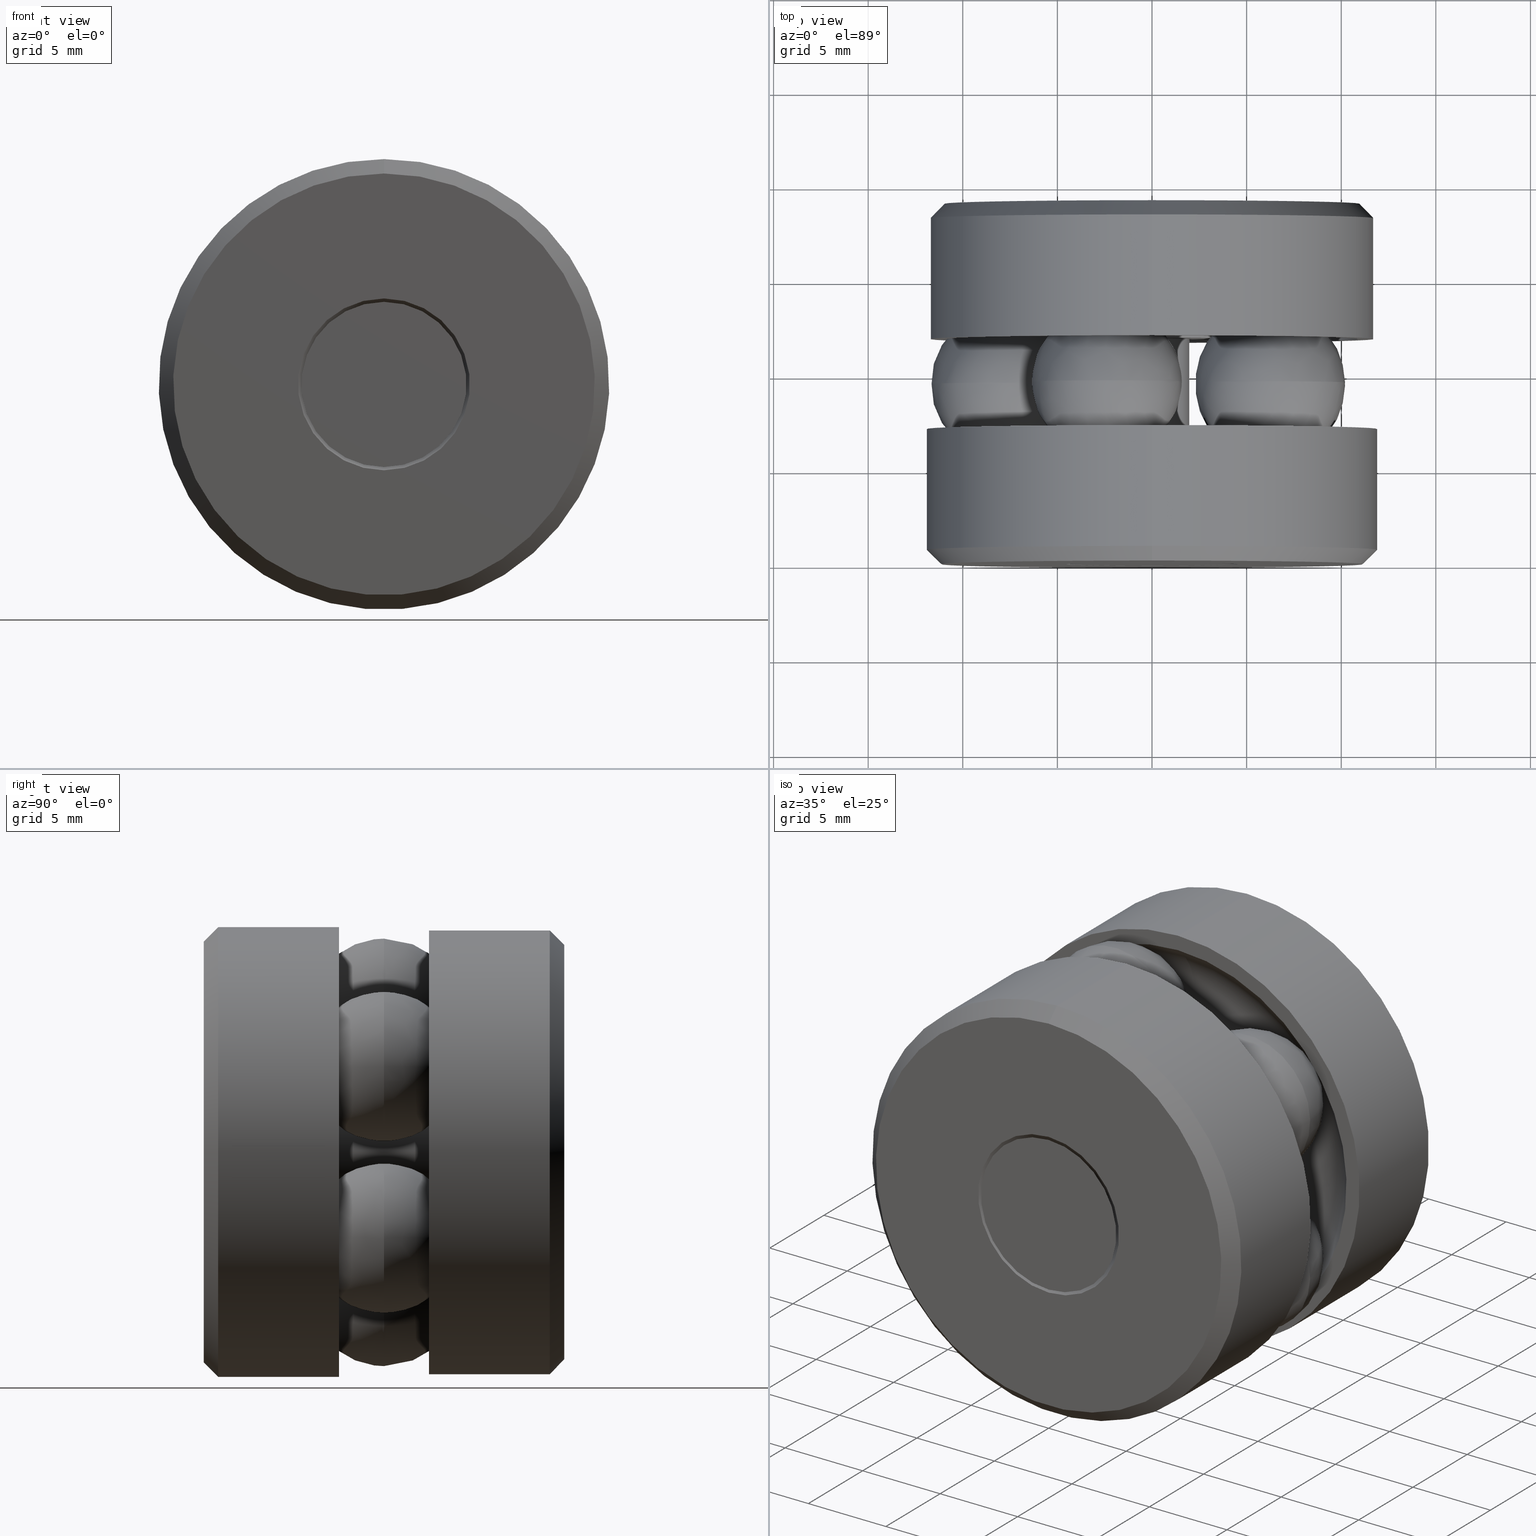
[diagram: canonical four-view strip — front | top / right | iso, engineering-drawing reading convention]
A machine part, canonical four-view strip (front | top / right | iso — engineering-drawing reading convention). The complete STEP part file that produces these views, byte-faithful:
ISO-10303-21;
HEADER;
FILE_DESCRIPTION (( 'STEP AP203' ),
    '1' );
FILE_NAME ('T-114RG_T-114RG-0015.step',
    '2016-02-04T15:34:10',
    ( '' ),
    ( '' ),
    'SwSTEP 2.0',
    'SolidWorks 2016',
    '' );
FILE_SCHEMA (( 'CONFIG_CONTROL_DESIGN' ));
ENDSEC;

DATA;
#1 = CARTESIAN_POINT ( 'NONE',  ( 0.0000000000000000000, 0.09375000000000001400, 0.0000000000000000000 ) ) ;
#2 = VERTEX_POINT ( 'NONE', #375 ) ;
#3 = FACE_BOUND ( 'NONE', #185, .T. ) ;
#4 = APPROVAL_ROLE ( '' ) ;
#5 = ORIENTED_EDGE ( 'NONE', *, *, #266, .T. ) ;
#6 = CARTESIAN_POINT ( 'NONE',  ( 0.0000000000000000000, 0.7500000000000001100, 0.0000000000000000000 ) ) ;
#7 = EDGE_CURVE ( 'NONE', #406, #406, #158, .T. ) ;
#8 = DIRECTION ( 'NONE',  ( 0.0000000000000000000, 0.0000000000000000000, 1.000000000000000000 ) ) ;
#9 = CARTESIAN_POINT ( 'NONE',  ( 0.0000000000000000000, 0.4685999999999999100, 0.4285499999999999900 ) ) ;
#10 = DIRECTION ( 'NONE',  ( -0.0000000000000000000, 1.000000000000000000, -0.0000000000000000000 ) ) ;
#11 = AXIS2_PLACEMENT_3D ( 'NONE', #392, #136, #362 ) ;
#12 = FACE_BOUND ( 'NONE', #261, .T. ) ;
#13 = DIRECTION ( 'NONE',  ( -0.9510565162951500900, 0.0000000000000000000, 0.3090169943749582800 ) ) ;
#14 = CARTESIAN_POINT ( 'NONE',  ( 0.0000000000000000000, 0.2813999999999999800, 0.4285499999999999300 ) ) ;
#15 = CARTESIAN_POINT ( 'NONE',  ( 0.0000000000000000000, 0.7500000000000001100, 0.0000000000000000000 ) ) ;
#16 = DIRECTION ( 'NONE',  ( 0.0000000000000000000, -1.000000000000000000, 0.0000000000000000000 ) ) ;
#17 = DIRECTION ( 'NONE',  ( 1.000000000000000000, 0.0000000000000000000, 0.0000000000000000000 ) ) ;
#18 = VERTEX_POINT ( 'NONE', #396 ) ;
#19 = CARTESIAN_POINT ( 'NONE',  ( 0.0000000000000000000, 0.3749999999999999400, 0.0000000000000000000 ) ) ;
#20 = FACE_BOUND ( 'NONE', #181, .T. ) ;
#21 = ORIENTED_EDGE ( 'NONE', *, *, #149, .F. ) ;
#22 = ADVANCED_FACE ( 'NONE', ( #393 ), #480, .T. ) ;
#23 = AXIS2_PLACEMENT_3D ( 'NONE', #45, #232, #511 ) ;
#24 = ADVANCED_FACE ( 'NONE', ( #40, #260 ), #365, .T. ) ;
#25 = TOROIDAL_SURFACE ( 'NONE', #37, 0.3037499999999999100, 0.1560000000000000000 ) ;
#26 = EDGE_CURVE ( 'NONE', #391, #391, #476, .T. ) ;
#27 = ORIENTED_EDGE ( 'NONE', *, *, #242, .T. ) ;
#28 = CC_DESIGN_APPROVAL ( #542, ( #519 ) ) ;
#29 = DESIGN_CONTEXT ( 'detailed design', #220, 'design' ) ;
#30 = VERTEX_POINT ( 'NONE', #207 ) ;
#31 = FACE_OUTER_BOUND ( 'NONE', #443, .T. ) ;
#32 = AXIS2_PLACEMENT_3D ( 'NONE', #471, #203, #465 ) ;
#33 = ORIENTED_EDGE ( 'NONE', *, *, #7, .T. ) ;
#34 = LOCAL_TIME ( 10, 34, 10.00000000000000000, #146 ) ;
#35 = DIRECTION ( 'NONE',  ( 0.0000000000000000000, 0.0000000000000000000, 1.000000000000000000 ) ) ;
#36 = FACE_OUTER_BOUND ( 'NONE', #477, .T. ) ;
#37 = AXIS2_PLACEMENT_3D ( 'NONE', #447, #249, #437 ) ;
#38 = CLOSED_SHELL ( 'NONE', ( #62, #324, #457, #412, #416, #527, #525, #106 ) ) ;
#39 = VERTEX_POINT ( 'NONE', #51 ) ;
#40 = FACE_BOUND ( 'NONE', #540, .T. ) ;
#41 = CLOSED_SHELL ( 'NONE', ( #493 ) ) ;
#42 = CALENDAR_DATE ( 2016, 4, 2 ) ;
#43 = DIRECTION ( 'NONE',  ( 0.0000000000000000000, 0.0000000000000000000, 1.000000000000000000 ) ) ;
#44 = CARTESIAN_POINT ( 'NONE',  ( 0.0000000000000000000, 0.0000000000000000000, 0.0000000000000000000 ) ) ;
#45 = CARTESIAN_POINT ( 'NONE',  ( 0.2457389120413912300, 0.3749999999999999400, 0.1785397703838372800 ) ) ;
#46 = CARTESIAN_POINT ( 'NONE',  ( 0.0000000000000000000, 0.7500000000000001100, 0.4317499999999999100 ) ) ;
#47 = FACE_OUTER_BOUND ( 'NONE', #173, .T. ) ;
#48 = EDGE_LOOP ( 'NONE', ( #495 ) ) ;
#49 = CARTESIAN_POINT ( 'NONE',  ( 0.0000000000000000000, 0.4685999999999999600, 0.08300000000000003200 ) ) ;
#50 = DIRECTION ( 'NONE',  ( -0.0000000000000000000, 1.000000000000000000, -0.0000000000000000000 ) ) ;
#51 = CARTESIAN_POINT ( 'NONE',  ( 0.0000000000000000000, 0.09582106781186527900, 0.08300000000000000400 ) ) ;
#52 = CARTESIAN_POINT ( 'NONE',  ( 0.0000000000000000000, 0.0000000000000000000, 0.0000000000000000000 ) ) ;
#53 = CC_DESIGN_PERSON_AND_ORGANIZATION_ASSIGNMENT ( #322, #330, ( #519 ) ) ;
#54 = ORIENTED_EDGE ( 'NONE', *, *, #275, .T. ) ;
#55 = CARTESIAN_POINT ( 'NONE',  ( 0.0000000000000000000, 0.0000000000000000000, 0.1717499999999989300 ) ) ;
#56 = CARTESIAN_POINT ( 'NONE',  ( 0.0000000000000000000, 0.0000000000000000000, 0.0000000000000000000 ) ) ;
#57 = CLOSED_SHELL ( 'NONE', ( #366 ) ) ;
#58 = DIRECTION ( 'NONE',  ( 0.0000000000000000000, 0.0000000000000000000, 1.000000000000000000 ) ) ;
#59 = AXIS2_PLACEMENT_3D ( 'NONE', #442, #482, #503 ) ;
#60 = PERSON_AND_ORGANIZATION ( #420, #75 ) ;
#61 = DIRECTION ( 'NONE',  ( -0.0000000000000000000, 1.000000000000000000, -0.0000000000000000000 ) ) ;
#62 = ADVANCED_FACE ( 'NONE', ( #31, #141 ), #466, .F. ) ;
#63 = DATE_TIME_ROLE ( 'creation_date' ) ;
#64 = FACE_OUTER_BOUND ( 'NONE', #461, .T. ) ;
#65 = ADVANCED_FACE ( 'NONE', ( #486, #274 ), #115, .T. ) ;
#66 = EDGE_CURVE ( 'NONE', #273, #273, #234, .T. ) ;
#67 = CLOSED_SHELL ( 'NONE', ( #192 ) ) ;
#68 = AXIS2_PLACEMENT_3D ( 'NONE', #297, #272, #303 ) ;
#69 = CIRCLE ( 'NONE', #331, 0.4387499999999999700 ) ;
#70 = ORIENTED_EDGE ( 'NONE', *, *, #275, .F. ) ;
#71 = EDGE_CURVE ( 'NONE', #156, #156, #353, .T. ) ;
#72 = CARTESIAN_POINT ( 'NONE',  ( -0.1789499999999998300, 0.2814000000000000400, 0.0000000000000000000 ) ) ;
#73 = COORDINATED_UNIVERSAL_TIME_OFFSET ( 5, 0, .BEHIND. ) ;
#74 = ORIENTED_EDGE ( 'NONE', *, *, #133, .F. ) ;
#75 = ORGANIZATION ( 'UNSPECIFIED', 'UNSPECIFIED', '' ) ;
#76 = SPHERICAL_SURFACE ( 'NONE', #536, 0.1560000000000000000 ) ;
#77 = AXIS2_PLACEMENT_3D ( 'NONE', #174, #166, #163 ) ;
#78 = ORIENTED_EDGE ( 'NONE', *, *, #287, .F. ) ;
#79 = PLANE ( 'NONE',  #108 ) ;
#80 = SHAPE_DEFINITION_REPRESENTATION ( #350, #154 ) ;
#81 = DIRECTION ( 'NONE',  ( -0.0000000000000000000, 1.000000000000000000, 0.0000000000000000000 ) ) ;
#82 = ORIENTED_EDGE ( 'NONE', *, *, #66, .T. ) ;
#83 = CC_DESIGN_DATE_AND_TIME_ASSIGNMENT ( #423, #63, ( #519 ) ) ;
#84 = LOCAL_TIME ( 10, 34, 10.00000000000000000, #202 ) ;
#85 = DIRECTION ( 'NONE',  ( 0.0000000000000000000, 0.0000000000000000000, 1.000000000000000000 ) ) ;
#86 = AXIS2_PLACEMENT_3D ( 'NONE', #1, #16, #411 ) ;
#87 = DIRECTION ( 'NONE',  ( -0.0000000000000000000, 1.000000000000000000, -0.0000000000000000000 ) ) ;
#88 = CIRCLE ( 'NONE', #413, 0.07800000000000009700 ) ;
#89 = CARTESIAN_POINT ( 'NONE',  ( 0.0000000000000000000, 0.6541789321881348300, 0.08300000000000011500 ) ) ;
#90 = ORIENTED_EDGE ( 'NONE', *, *, #191, .T. ) ;
#91 = DIRECTION ( 'NONE',  ( -0.0000000000000000000, 1.000000000000000000, -0.0000000000000000000 ) ) ;
#92 = DIRECTION ( 'NONE',  ( 0.0000000000000000000, 0.0000000000000000000, 1.000000000000000000 ) ) ;
#93 = APPLICATION_PROTOCOL_DEFINITION ( 'international standard', 'config_control_design', 1994, #432 ) ;
#94 = AXIS2_PLACEMENT_3D ( 'NONE', #251, #363, #342 ) ;
#95 = CARTESIAN_POINT ( 'NONE',  ( 0.0000000000000000000, 0.4685999999999999100, 0.0000000000000000000 ) ) ;
#96 = FACE_OUTER_BOUND ( 'NONE', #472, .T. ) ;
#97 = ORIENTED_EDGE ( 'NONE', *, *, #7, .F. ) ;
#98 = MANIFOLD_SOLID_BREP ( 'BALLS[4]', #195 ) ;
#99 = PLANE ( 'NONE',  #262 ) ;
#100 = CALENDAR_DATE ( 2016, 4, 2 ) ;
#101 = DIRECTION ( 'NONE',  ( 0.0000000000000000000, -0.0000000000000000000, -1.000000000000000000 ) ) ;
#102 = ADVANCED_FACE ( 'NONE', ( ), #123, .T. ) ;
#103 = FACE_OUTER_BOUND ( 'NONE', #278, .T. ) ;
#104 = DIRECTION ( 'NONE',  ( 0.0000000000000000000, -1.000000000000000000, 0.0000000000000000000 ) ) ;
#105 = ORIENTED_EDGE ( 'NONE', *, *, #242, .F. ) ;
#106 = ADVANCED_FACE ( 'NONE', ( #244, #3 ), #99, .T. ) ;
#107 = CARTESIAN_POINT ( 'NONE',  ( 0.0000000000000000000, 0.4685999999999999600, 0.4617499999999999900 ) ) ;
#108 = AXIS2_PLACEMENT_3D ( 'NONE', #72, #81, #35 ) ;
#109 = FACE_BOUND ( 'NONE', #468, .T. ) ;
#110 = ORIENTED_EDGE ( 'NONE', *, *, #287, .T. ) ;
#111 = PRODUCT_DEFINITION_FORMATION_WITH_SPECIFIED_SOURCE ( 'ANY', '', #270, .NOT_KNOWN. ) ;
#112 = DIRECTION ( 'NONE',  ( 0.0000000000000000000, 0.0000000000000000000, 1.000000000000000000 ) ) ;
#113 = AXIS2_PLACEMENT_3D ( 'NONE', #424, #439, #334 ) ;
#114 = VERTEX_POINT ( 'NONE', #291 ) ;
#115 = CONICAL_SURFACE ( 'NONE', #86, 0.07800000000000000000, 0.7853981633974426200 ) ;
#116 = DIRECTION ( 'NONE',  ( -0.0000000000000000000, 1.000000000000000000, -0.0000000000000000000 ) ) ;
#117 = EDGE_LOOP ( 'NONE', ( #21 ) ) ;
#118 = CARTESIAN_POINT ( 'NONE',  ( 0.0000000000000000000, 0.4685999999999999600, 0.0000000000000000000 ) ) ;
#119 = DIRECTION ( 'NONE',  ( 0.0000000000000000000, 0.0000000000000000000, 1.000000000000000000 ) ) ;
#120 = FACE_OUTER_BOUND ( 'NONE', #390, .T. ) ;
#121 = DIRECTION ( 'NONE',  ( -0.3090169943749447300, 0.0000000000000000000, 0.9510565162951545300 ) ) ;
#122 = VERTEX_POINT ( 'NONE', #178 ) ;
#123 = SPHERICAL_SURFACE ( 'NONE', #204, 0.1560000000000000000 ) ;
#124 = EDGE_LOOP ( 'NONE', ( #134 ) ) ;
#125 = DIRECTION ( 'NONE',  ( -0.0000000000000000000, 1.000000000000000000, -0.0000000000000000000 ) ) ;
#126 =( CONVERSION_BASED_UNIT ( 'INCH', #534 ) LENGTH_UNIT ( ) NAMED_UNIT ( #459 ) );
#127 = AXIS2_PLACEMENT_3D ( 'NONE', #19, #358, #92 ) ;
#128 = DIRECTION ( 'NONE',  ( -0.0000000000000000000, 1.000000000000000000, -0.0000000000000000000 ) ) ;
#129 = CARTESIAN_POINT ( 'NONE',  ( 0.0000000000000000000, 0.2813999999999999300, 0.0000000000000000000 ) ) ;
#130 = SPHERICAL_SURFACE ( 'NONE', #506, 0.1560000000000000000 ) ;
#131 = PERSON_AND_ORGANIZATION_ROLE ( 'classification_officer' ) ;
#132 = CARTESIAN_POINT ( 'NONE',  ( -0.3037499999999999100, 0.3749999999999999400, 0.0000000000000000000 ) ) ;
#133 = EDGE_CURVE ( 'NONE', #39, #39, #454, .T. ) ;
#134 = ORIENTED_EDGE ( 'NONE', *, *, #26, .F. ) ;
#135 = DIRECTION ( 'NONE',  ( 0.0000000000000000000, 0.0000000000000000000, 1.000000000000000000 ) ) ;
#136 = DIRECTION ( 'NONE',  ( -0.0000000000000000000, 1.000000000000000000, 0.0000000000000000000 ) ) ;
#137 = APPROVAL ( #215, 'UNSPECIFIED' ) ;
#138 = CARTESIAN_POINT ( 'NONE',  ( 0.0000000000000000000, 0.7199999999999997500, 0.0000000000000000000 ) ) ;
#139 = VERTEX_POINT ( 'NONE', #14 ) ;
#140 = DIRECTION ( 'NONE',  ( 0.0000000000000000000, 0.0000000000000000000, 1.000000000000000000 ) ) ;
#141 = FACE_BOUND ( 'NONE', #160, .T. ) ;
#142 = ADVANCED_FACE ( 'NONE', ( #381, #337 ), #206, .F. ) ;
#143 = DIRECTION ( 'NONE',  ( -0.0000000000000000000, 1.000000000000000000, -0.0000000000000000000 ) ) ;
#144 = AXIS2_PLACEMENT_3D ( 'NONE', #451, #382, #335 ) ;
#145 = EDGE_LOOP ( 'NONE', ( #33 ) ) ;
#146 = COORDINATED_UNIVERSAL_TIME_OFFSET ( 5, 0, .BEHIND. ) ;
#147 = CARTESIAN_POINT ( 'NONE',  ( 0.0000000000000000000, -4.886714801477222700E-017, 0.0000000000000000000 ) ) ;
#148 = ADVANCED_FACE ( 'NONE', ( #20, #103 ), #336, .T. ) ;
#149 = EDGE_CURVE ( 'NONE', #485, #485, #440, .T. ) ;
#150 = CYLINDRICAL_SURFACE ( 'NONE', #314, 0.07800000000000004200 ) ;
#151 = EDGE_LOOP ( 'NONE', ( #214 ) ) ;
#152 = AXIS2_PLACEMENT_3D ( 'NONE', #300, #323, #311 ) ;
#153 = DIRECTION ( 'NONE',  ( 0.0000000000000000000, 0.0000000000000000000, 1.000000000000000000 ) ) ;
#154 = ADVANCED_BREP_SHAPE_REPRESENTATION ( 'T-114RG_T-114RG-0015', ( #361, #403, #496, #199, #541, #463, #306, #98, #474 ), #305 ) ;
#155 = EDGE_CURVE ( 'NONE', #379, #379, #88, .T. ) ;
#156 = VERTEX_POINT ( 'NONE', #55 ) ;
#157 = EDGE_CURVE ( 'NONE', #258, #258, #526, .T. ) ;
#158 = CIRCLE ( 'NONE', #252, 0.4285499999999999900 ) ;
#159 = DIRECTION ( 'NONE',  ( 0.0000000000000000000, 0.0000000000000000000, 1.000000000000000000 ) ) ;
#160 = EDGE_LOOP ( 'NONE', ( #407 ) ) ;
#161 = LOCAL_TIME ( 10, 34, 10.00000000000000000, #279 ) ;
#162 = PERSON_AND_ORGANIZATION_ROLE ( 'design_supplier' ) ;
#163 = DIRECTION ( 'NONE',  ( 0.0000000000000000000, 0.0000000000000000000, 1.000000000000000000 ) ) ;
#164 = AXIS2_PLACEMENT_3D ( 'NONE', #186, #125, #119 ) ;
#165 = FACE_OUTER_BOUND ( 'NONE', #48, .T. ) ;
#166 = DIRECTION ( 'NONE',  ( -0.0000000000000000000, 1.000000000000000000, -0.0000000000000000000 ) ) ;
#167 = ORIENTED_EDGE ( 'NONE', *, *, #188, .F. ) ;
#168 = DIRECTION ( 'NONE',  ( 0.9510565162951545300, -0.0000000000000000000, 0.3090169943749447300 ) ) ;
#169 = DIRECTION ( 'NONE',  ( 0.0000000000000000000, 0.0000000000000000000, 1.000000000000000000 ) ) ;
#170 = CYLINDRICAL_SURFACE ( 'NONE', #359, 0.4617499999999999900 ) ;
#171 = CC_DESIGN_APPROVAL ( #137, ( #111 ) ) ;
#172 = CARTESIAN_POINT ( 'NONE',  ( 0.0000000000000000000, 0.4685999999999999100, 0.1789499999999999100 ) ) ;
#173 = EDGE_LOOP ( 'NONE', ( #267 ) ) ;
#174 = CARTESIAN_POINT ( 'NONE',  ( 0.0000000000000000000, 0.7500000000000001100, 0.0000000000000000000 ) ) ;
#175 = EDGE_LOOP ( 'NONE', ( #428 ) ) ;
#176 = APPROVAL_DATE_TIME ( #295, #137 ) ;
#177 = CARTESIAN_POINT ( 'NONE',  ( 0.0000000000000000000, 0.6541789321881348300, 0.0000000000000000000 ) ) ;
#178 = CARTESIAN_POINT ( 'NONE',  ( 0.0000000000000000000, 0.2813999999999999300, 0.4687500000000000000 ) ) ;
#179 = COORDINATED_UNIVERSAL_TIME_OFFSET ( 5, 0, .BEHIND. ) ;
#180 = TOROIDAL_SURFACE ( 'NONE', #127, 0.3037499999999999100, 0.1560000000000000000 ) ;
#181 = EDGE_LOOP ( 'NONE', ( #369 ) ) ;
#182 = AXIS2_PLACEMENT_3D ( 'NONE', #368, #246, #307 ) ;
#183 = CARTESIAN_POINT ( 'NONE',  ( 0.0000000000000000000, 0.0000000000000000000, 0.0000000000000000000 ) ) ;
#184 = FACE_OUTER_BOUND ( 'NONE', #313, .T. ) ;
#185 = EDGE_LOOP ( 'NONE', ( #105 ) ) ;
#186 = CARTESIAN_POINT ( 'NONE',  ( 0.0000000000000000000, 0.03000000000000029400, 0.0000000000000000000 ) ) ;
#187 = DIRECTION ( 'NONE',  ( 0.0000000000000000000, 0.0000000000000000000, 1.000000000000000000 ) ) ;
#188 = EDGE_CURVE ( 'NONE', #139, #139, #325, .T. ) ;
#189 = APPROVAL_PERSON_ORGANIZATION ( #310, #137, #288 ) ;
#190 = DIRECTION ( 'NONE',  ( 0.0000000000000000000, 0.0000000000000000000, 1.000000000000000000 ) ) ;
#191 = EDGE_CURVE ( 'NONE', #30, #30, #312, .T. ) ;
#192 = ADVANCED_FACE ( 'NONE', ( ), #76, .T. ) ;
#193 = CIRCLE ( 'NONE', #512, 0.4317499999999999100 ) ;
#194 = AXIS2_PLACEMENT_3D ( 'NONE', #129, #128, #159 ) ;
#195 = CLOSED_SHELL ( 'NONE', ( #102 ) ) ;
#196 = ADVANCED_FACE ( 'NONE', ( ), #426, .T. ) ;
#197 = EDGE_CURVE ( 'NONE', #475, #475, #193, .T. ) ;
#198 = SPHERICAL_SURFACE ( 'NONE', #240, 0.1560000000000000000 ) ;
#199 = MANIFOLD_SOLID_BREP ( 'Revolve3', #57 ) ;
#200 = CLOSED_SHELL ( 'NONE', ( #455, #24, #148, #142, #281, #236, #238, #372 ) ) ;
#201 = CC_DESIGN_PERSON_AND_ORGANIZATION_ASSIGNMENT ( #60, #217, ( #111 ) ) ;
#202 = COORDINATED_UNIVERSAL_TIME_OFFSET ( 5, 0, .BEHIND. ) ;
#203 = DIRECTION ( 'NONE',  ( -0.0000000000000000000, 1.000000000000000000, -0.0000000000000000000 ) ) ;
#204 = AXIS2_PLACEMENT_3D ( 'NONE', #269, #13, #522 ) ;
#205 = DIRECTION ( 'NONE',  ( -0.0000000000000000000, 1.000000000000000000, -0.0000000000000000000 ) ) ;
#206 = CONICAL_SURFACE ( 'NONE', #296, 0.1788210678118642400, 0.7853981633974428400 ) ;
#207 = CARTESIAN_POINT ( 'NONE',  ( 0.0000000000000000000, 0.7199999999999997500, 0.4617499999999999900 ) ) ;
#208 = DIRECTION ( 'NONE',  ( -0.0000000000000000000, 1.000000000000000000, -0.0000000000000000000 ) ) ;
#209 = EDGE_LOOP ( 'NONE', ( #97 ) ) ;
#210 = CARTESIAN_POINT ( 'NONE',  ( 0.0000000000000000000, -1.956373509651593500E-018, 0.0000000000000000000 ) ) ;
#211 = AXIS2_PLACEMENT_3D ( 'NONE', #318, #530, #481 ) ;
#212 = FACE_OUTER_BOUND ( 'NONE', #117, .T. ) ;
#213 = DIRECTION ( 'NONE',  ( 0.0000000000000000000, 0.0000000000000000000, 1.000000000000000000 ) ) ;
#214 = ORIENTED_EDGE ( 'NONE', *, *, #328, .T. ) ;
#215 = APPROVAL_STATUS ( 'not_yet_approved' ) ;
#216 = LOCAL_TIME ( 10, 34, 10.00000000000000000, #179 ) ;
#217 = PERSON_AND_ORGANIZATION_ROLE ( 'creator' ) ;
#218 = APPLICATION_PROTOCOL_DEFINITION ( 'international standard', 'config_control_design', 1994, #220 ) ;
#219 = DIRECTION ( 'NONE',  ( -0.0000000000000000000, 1.000000000000000000, -0.0000000000000000000 ) ) ;
#220 = APPLICATION_CONTEXT ( 'configuration controlled 3d designs of mechanical parts and assemblies' ) ;
#221 = FACE_OUTER_BOUND ( 'NONE', #421, .T. ) ;
#222 = DIRECTION ( 'NONE',  ( -0.0000000000000000000, 1.000000000000000000, -0.0000000000000000000 ) ) ;
#223 = EDGE_LOOP ( 'NONE', ( #339 ) ) ;
#224 = CARTESIAN_POINT ( 'NONE',  ( 0.0000000000000000000, 0.6562500000000001100, 0.07800000000000009700 ) ) ;
#225 = AXIS2_PLACEMENT_3D ( 'NONE', #226, #222, #190 ) ;
#226 = CARTESIAN_POINT ( 'NONE',  ( 0.0000000000000000000, 0.2814000000000000400, 0.0000000000000000000 ) ) ;
#227 = FACE_BOUND ( 'NONE', #484, .T. ) ;
#228 = DIRECTION ( 'NONE',  ( 0.0000000000000000000, 0.0000000000000000000, 1.000000000000000000 ) ) ;
#229 = EDGE_LOOP ( 'NONE', ( #508 ) ) ;
#230 = DIRECTION ( 'NONE',  ( -0.0000000000000000000, 1.000000000000000000, 0.0000000000000000000 ) ) ;
#231 = CC_DESIGN_PERSON_AND_ORGANIZATION_ASSIGNMENT ( #502, #162, ( #111 ) ) ;
#232 = DIRECTION ( 'NONE',  ( 0.5877852522924684700, 0.0000000000000000000, -0.8090169943749507800 ) ) ;
#233 = VERTEX_POINT ( 'NONE', #378 ) ;
#234 = CIRCLE ( 'NONE', #113, 0.08300000000000003200 ) ;
#235 = AXIS2_PLACEMENT_3D ( 'NONE', #488, #316, #398 ) ;
#236 = ADVANCED_FACE ( 'NONE', ( #221, #515 ), #79, .T. ) ;
#237 = EDGE_LOOP ( 'NONE', ( #355 ) ) ;
#238 = ADVANCED_FACE ( 'NONE', ( #415, #64 ), #180, .F. ) ;
#239 = FACE_OUTER_BOUND ( 'NONE', #489, .T. ) ;
#240 = AXIS2_PLACEMENT_3D ( 'NONE', #271, #388, #387 ) ;
#241 = PLANE ( 'NONE',  #458 ) ;
#242 = EDGE_CURVE ( 'NONE', #364, #364, #535, .T. ) ;
#243 = VERTEX_POINT ( 'NONE', #349 ) ;
#244 = FACE_OUTER_BOUND ( 'NONE', #450, .T. ) ;
#245 = EDGE_LOOP ( 'NONE', ( #394 ) ) ;
#246 = DIRECTION ( 'NONE',  ( 0.0000000000000000000, -1.000000000000000000, 0.0000000000000000000 ) ) ;
#247 = APPROVAL_DATE_TIME ( #370, #348 ) ;
#248 = AXIS2_PLACEMENT_3D ( 'NONE', #118, #116, #112 ) ;
#249 = DIRECTION ( 'NONE',  ( -0.0000000000000000000, 1.000000000000000000, -0.0000000000000000000 ) ) ;
#250 = FACE_OUTER_BOUND ( 'NONE', #223, .T. ) ;
#251 = CARTESIAN_POINT ( 'NONE',  ( -0.4617499999999999900, 0.4685999999999999100, 0.0000000000000000000 ) ) ;
#252 = AXIS2_PLACEMENT_3D ( 'NONE', #453, #419, #429 ) ;
#253 = EDGE_LOOP ( 'NONE', ( #255 ) ) ;
#254 = EDGE_CURVE ( 'NONE', #243, #243, #282, .T. ) ;
#255 = ORIENTED_EDGE ( 'NONE', *, *, #197, .F. ) ;
#256 = UNCERTAINTY_MEASURE_WITH_UNIT (LENGTH_MEASURE( 1.000000000000000100E-005 ), #126, 'distance_accuracy_value', 'NONE');
#257 = SECURITY_CLASSIFICATION ( '', '', #346 ) ;
#258 = VERTEX_POINT ( 'NONE', #377 ) ;
#259 = CARTESIAN_POINT ( 'NONE',  ( 0.0000000000000000000, 0.7500000000000001100, 0.0000000000000000000 ) ) ;
#260 = FACE_OUTER_BOUND ( 'NONE', #302, .T. ) ;
#261 = EDGE_LOOP ( 'NONE', ( #167 ) ) ;
#262 = AXIS2_PLACEMENT_3D ( 'NONE', #520, #462, #524 ) ;
#263 = APPROVAL_PERSON_ORGANIZATION ( #385, #348, #360 ) ;
#264 =( NAMED_UNIT ( * ) SI_UNIT ( $, .STERADIAN. ) SOLID_ANGLE_UNIT ( ) );
#265 = CIRCLE ( 'NONE', #283, 0.08300000000000011500 ) ;
#266 = EDGE_CURVE ( 'NONE', #122, #122, #504, .T. ) ;
#267 = ORIENTED_EDGE ( 'NONE', *, *, #66, .F. ) ;
#268 = AXIS2_PLACEMENT_3D ( 'NONE', #259, #277, #347 ) ;
#269 = CARTESIAN_POINT ( 'NONE',  ( -0.09386391204139353500, 0.3749999999999999400, -0.2888834168246517400 ) ) ;
#270 = PRODUCT ( 'T-114RG_T-114RG-0015', 'T-114RG_T-114RG-0015', '', ( #434 ) ) ;
#271 = CARTESIAN_POINT ( 'NONE',  ( 0.2457389120413886500, 0.3749999999999999400, -0.1785397703838408300 ) ) ;
#272 = DIRECTION ( 'NONE',  ( -0.0000000000000000000, 1.000000000000000000, -0.0000000000000000000 ) ) ;
#273 = VERTEX_POINT ( 'NONE', #49 ) ;
#274 = FACE_BOUND ( 'NONE', #124, .T. ) ;
#275 = EDGE_CURVE ( 'NONE', #18, #18, #299, .T. ) ;
#276 =( LENGTH_UNIT ( ) NAMED_UNIT ( * ) SI_UNIT ( $, .METRE. ) );
#277 = DIRECTION ( 'NONE',  ( 0.0000000000000000000, -1.000000000000000000, 0.0000000000000000000 ) ) ;
#278 = EDGE_LOOP ( 'NONE', ( #417 ) ) ;
#279 = COORDINATED_UNIVERSAL_TIME_OFFSET ( 5, 0, .BEHIND. ) ;
#280 = ADVANCED_FACE ( 'NONE', ( #165, #389 ), #150, .T. ) ;
#281 = ADVANCED_FACE ( 'NONE', ( #494, #36 ), #374, .F. ) ;
#282 = CIRCLE ( 'NONE', #164, 0.4687500000000000000 ) ;
#283 = AXIS2_PLACEMENT_3D ( 'NONE', #177, #219, #213 ) ;
#284 = ORIENTED_EDGE ( 'NONE', *, *, #538, .T. ) ;
#285 = PERSON_AND_ORGANIZATION_ROLE ( 'design_owner' ) ;
#286 = EDGE_LOOP ( 'NONE', ( #110 ) ) ;
#287 = EDGE_CURVE ( 'NONE', #464, #464, #483, .T. ) ;
#288 = APPROVAL_ROLE ( '' ) ;
#289 = CONICAL_SURFACE ( 'NONE', #268, 0.4317499999999999100, 0.7853981633974437300 ) ;
#290 = ORIENTED_EDGE ( 'NONE', *, *, #197, .T. ) ;
#291 = CARTESIAN_POINT ( 'NONE',  ( 0.0000000000000000000, -1.956373509651593500E-018, 0.1788210678118642400 ) ) ;
#292 = CC_DESIGN_PERSON_AND_ORGANIZATION_ASSIGNMENT ( #395, #131, ( #257 ) ) ;
#293 = EDGE_CURVE ( 'NONE', #351, #351, #265, .T. ) ;
#294 = EDGE_LOOP ( 'NONE', ( #309 ) ) ;
#295 = DATE_AND_TIME ( #410, #510 ) ;
#296 = AXIS2_PLACEMENT_3D ( 'NONE', #210, #317, #405 ) ;
#297 = CARTESIAN_POINT ( 'NONE',  ( 0.0000000000000000000, 0.7500000000000001100, 0.0000000000000000000 ) ) ;
#298 = APPROVAL_PERSON_ORGANIZATION ( #414, #542, #4 ) ;
#299 = CIRCLE ( 'NONE', #225, 0.1789499999999998900 ) ;
#300 = CARTESIAN_POINT ( 'NONE',  ( 0.0000000000000000000, 0.0000000000000000000, 0.0000000000000000000 ) ) ;
#301 = AXIS2_PLACEMENT_3D ( 'NONE', #452, #408, #402 ) ;
#302 = EDGE_LOOP ( 'NONE', ( #435 ) ) ;
#303 = DIRECTION ( 'NONE',  ( 0.0000000000000000000, 0.0000000000000000000, 1.000000000000000000 ) ) ;
#304 = DIRECTION ( 'NONE',  ( -0.0000000000000000000, 1.000000000000000000, -0.0000000000000000000 ) ) ;
#305 =( GEOMETRIC_REPRESENTATION_CONTEXT ( 3 ) GLOBAL_UNCERTAINTY_ASSIGNED_CONTEXT ( ( #256 ) ) GLOBAL_UNIT_ASSIGNED_CONTEXT ( ( #126, #367, #264 ) ) REPRESENTATION_CONTEXT ( 'NONE', 'WORKASPACE' ) );
#306 = MANIFOLD_SOLID_BREP ( 'BALLS[3]', #41 ) ;
#307 = DIRECTION ( 'NONE',  ( 0.0000000000000000000, -0.0000000000000000000, -1.000000000000000000 ) ) ;
#308 = CONICAL_SURFACE ( 'NONE', #68, 0.1717499999999990700, 0.7853981633974431700 ) ;
#309 = ORIENTED_EDGE ( 'NONE', *, *, #254, .T. ) ;
#310 = PERSON_AND_ORGANIZATION ( #420, #75 ) ;
#311 = DIRECTION ( 'NONE',  ( 0.0000000000000000000, 0.0000000000000000000, 1.000000000000000000 ) ) ;
#312 = CIRCLE ( 'NONE', #492, 0.4617499999999999900 ) ;
#313 = EDGE_LOOP ( 'NONE', ( #333 ) ) ;
#314 = AXIS2_PLACEMENT_3D ( 'NONE', #52, #91, #187 ) ;
#315 = CARTESIAN_POINT ( 'NONE',  ( -0.1788210678118642400, -2.541176076221191100E-017, 0.0000000000000000000 ) ) ;
#316 = DIRECTION ( 'NONE',  ( -0.0000000000000000000, 1.000000000000000000, -0.0000000000000000000 ) ) ;
#317 = DIRECTION ( 'NONE',  ( 0.0000000000000000000, -1.000000000000000000, 0.0000000000000000000 ) ) ;
#318 = CARTESIAN_POINT ( 'NONE',  ( 0.0000000000000000000, -1.956373509651593500E-018, 0.0000000000000000000 ) ) ;
#319 = CIRCLE ( 'NONE', #211, 0.1788210678118642400 ) ;
#320 = EDGE_LOOP ( 'NONE', ( #456 ) ) ;
#321 = CC_DESIGN_DATE_AND_TIME_ASSIGNMENT ( #491, #470, ( #257 ) ) ;
#322 = PERSON_AND_ORGANIZATION ( #420, #75 ) ;
#323 = DIRECTION ( 'NONE',  ( -0.0000000000000000000, 1.000000000000000000, -0.0000000000000000000 ) ) ;
#324 = ADVANCED_FACE ( 'NONE', ( #250, #47 ), #357, .F. ) ;
#325 = CIRCLE ( 'NONE', #469, 0.4285499999999999300 ) ;
#326 = ADVANCED_FACE ( 'NONE', ( #399 ), #241, .T. ) ;
#327 = CLOSED_SHELL ( 'NONE', ( #22, #326, #490, #280, #65 ) ) ;
#328 = EDGE_CURVE ( 'NONE', #233, #233, #473, .T. ) ;
#329 = FACE_OUTER_BOUND ( 'NONE', #294, .T. ) ;
#330 = PERSON_AND_ORGANIZATION_ROLE ( 'creator' ) ;
#331 = AXIS2_PLACEMENT_3D ( 'NONE', #147, #143, #58 ) ;
#332 = CLOSED_SHELL ( 'NONE', ( #196 ) ) ;
#333 = ORIENTED_EDGE ( 'NONE', *, *, #191, .F. ) ;
#334 = DIRECTION ( 'NONE',  ( 0.0000000000000000000, 0.0000000000000000000, 1.000000000000000000 ) ) ;
#335 = DIRECTION ( 'NONE',  ( 0.0000000000000000000, 0.0000000000000000000, 1.000000000000000000 ) ) ;
#336 = PLANE ( 'NONE',  #386 ) ;
#337 = FACE_OUTER_BOUND ( 'NONE', #245, .T. ) ;
#338 = DIRECTION ( 'NONE',  ( 0.0000000000000000000, 0.0000000000000000000, 1.000000000000000000 ) ) ;
#339 = ORIENTED_EDGE ( 'NONE', *, *, #293, .T. ) ;
#340 = CARTESIAN_POINT ( 'NONE',  ( 0.0000000000000000000, 0.6562500000000001100, 0.0000000000000000000 ) ) ;
#341 = AXIS2_PLACEMENT_3D ( 'NONE', #183, #205, #140 ) ;
#342 = DIRECTION ( 'NONE',  ( 0.0000000000000000000, -0.0000000000000000000, -1.000000000000000000 ) ) ;
#343 = APPROVAL_STATUS ( 'not_yet_approved' ) ;
#344 = FACE_OUTER_BOUND ( 'NONE', #521, .T. ) ;
#345 = ORIENTED_EDGE ( 'NONE', *, *, #71, .F. ) ;
#346 = SECURITY_CLASSIFICATION_LEVEL ( 'unclassified' ) ;
#347 = DIRECTION ( 'NONE',  ( 0.0000000000000000000, 0.0000000000000000000, -1.000000000000000000 ) ) ;
#348 = APPROVAL ( #383, 'UNSPECIFIED' ) ;
#349 = CARTESIAN_POINT ( 'NONE',  ( 0.0000000000000000000, 0.03000000000000029400, 0.4687500000000000000 ) ) ;
#350 = PRODUCT_DEFINITION_SHAPE ( 'NONE', 'NONE',  #519 ) ;
#351 = VERTEX_POINT ( 'NONE', #89 ) ;
#352 = CARTESIAN_POINT ( 'NONE',  ( 0.0000000000000000000, 0.7500000000000001100, 0.1788210678118643800 ) ) ;
#353 = CIRCLE ( 'NONE', #144, 0.1717499999999989300 ) ;
#354 = AXIS2_PLACEMENT_3D ( 'NONE', #95, #61, #431 ) ;
#355 = ORIENTED_EDGE ( 'NONE', *, *, #266, .F. ) ;
#356 = PLANE ( 'NONE',  #182 ) ;
#357 = CYLINDRICAL_SURFACE ( 'NONE', #430, 0.08300000000000007400 ) ;
#358 = DIRECTION ( 'NONE',  ( -0.0000000000000000000, 1.000000000000000000, -0.0000000000000000000 ) ) ;
#359 = AXIS2_PLACEMENT_3D ( 'NONE', #44, #304, #43 ) ;
#360 = APPROVAL_ROLE ( '' ) ;
#361 = MANIFOLD_SOLID_BREP ( 'Revolve2[1]', #327 ) ;
#362 = DIRECTION ( 'NONE',  ( 0.0000000000000000000, 0.0000000000000000000, 1.000000000000000000 ) ) ;
#363 = DIRECTION ( 'NONE',  ( 0.0000000000000000000, -1.000000000000000000, 0.0000000000000000000 ) ) ;
#364 = VERTEX_POINT ( 'NONE', #352 ) ;
#365 = CONICAL_SURFACE ( 'NONE', #528, 0.4687500000000000000, 0.7853981633974429500 ) ;
#366 = ADVANCED_FACE ( 'NONE', ( ), #130, .T. ) ;
#367 =( NAMED_UNIT ( * ) PLANE_ANGLE_UNIT ( ) SI_UNIT ( $, .RADIAN. ) );
#368 = CARTESIAN_POINT ( 'NONE',  ( -0.1789499999999998900, 0.4685999999999999100, 0.0000000000000000000 ) ) ;
#369 = ORIENTED_EDGE ( 'NONE', *, *, #501, .T. ) ;
#370 = DATE_AND_TIME ( #478, #34 ) ;
#371 = PLANE ( 'NONE',  #94 ) ;
#372 = ADVANCED_FACE ( 'NONE', ( #239, #12 ), #444, .T. ) ;
#373 = AXIS2_PLACEMENT_3D ( 'NONE', #446, #445, #400 ) ;
#374 = CYLINDRICAL_SURFACE ( 'NONE', #341, 0.08300000000000000400 ) ;
#375 = CARTESIAN_POINT ( 'NONE',  ( 0.0000000000000000000, -4.886714801477222700E-017, 0.4387499999999999700 ) ) ;
#376 = ORIENTED_EDGE ( 'NONE', *, *, #188, .T. ) ;
#377 = CARTESIAN_POINT ( 'NONE',  ( 0.0000000000000000000, 0.2814000000000000900, 0.08299999999999999000 ) ) ;
#378 = CARTESIAN_POINT ( 'NONE',  ( 0.0000000000000000000, 0.7500000000000001100, 0.1717499999999990700 ) ) ;
#379 = VERTEX_POINT ( 'NONE', #224 ) ;
#380 = CC_DESIGN_APPROVAL ( #348, ( #257 ) ) ;
#381 = FACE_BOUND ( 'NONE', #499, .T. ) ;
#382 = DIRECTION ( 'NONE',  ( -0.0000000000000000000, 1.000000000000000000, -0.0000000000000000000 ) ) ;
#383 = APPROVAL_STATUS ( 'not_yet_approved' ) ;
#384 = EDGE_LOOP ( 'NONE', ( #376 ) ) ;
#385 = PERSON_AND_ORGANIZATION ( #420, #75 ) ;
#386 = AXIS2_PLACEMENT_3D ( 'NONE', #315, #104, #101 ) ;
#387 = DIRECTION ( 'NONE',  ( 0.8090169943749423400, 0.0000000000000000000, -0.5877852522924803500 ) ) ;
#388 = DIRECTION ( 'NONE',  ( -0.5877852522924803500, 0.0000000000000000000, -0.8090169943749423400 ) ) ;
#389 = FACE_OUTER_BOUND ( 'NONE', #320, .T. ) ;
#390 = EDGE_LOOP ( 'NONE', ( #78 ) ) ;
#391 = VERTEX_POINT ( 'NONE', #425 ) ;
#392 = CARTESIAN_POINT ( 'NONE',  ( -0.4687500000000000000, 0.2813999999999999800, 0.0000000000000000000 ) ) ;
#393 = FACE_OUTER_BOUND ( 'NONE', #517, .T. ) ;
#394 = ORIENTED_EDGE ( 'NONE', *, *, #501, .F. ) ;
#395 = PERSON_AND_ORGANIZATION ( #420, #75 ) ;
#396 = CARTESIAN_POINT ( 'NONE',  ( 0.0000000000000000000, 0.2814000000000000400, 0.1789499999999998900 ) ) ;
#397 = DIRECTION ( 'NONE',  ( -1.000000000000000000, 0.0000000000000000000, 0.0000000000000000000 ) ) ;
#398 = DIRECTION ( 'NONE',  ( 0.0000000000000000000, 0.0000000000000000000, 1.000000000000000000 ) ) ;
#399 = FACE_OUTER_BOUND ( 'NONE', #151, .T. ) ;
#400 = DIRECTION ( 'NONE',  ( 0.0000000000000000000, 0.0000000000000000000, 1.000000000000000000 ) ) ;
#401 = ORIENTED_EDGE ( 'NONE', *, *, #149, .T. ) ;
#402 = DIRECTION ( 'NONE',  ( 0.0000000000000000000, -0.0000000000000000000, -1.000000000000000000 ) ) ;
#403 = MANIFOLD_SOLID_BREP ( 'Revolve2[2]', #38 ) ;
#404 = DIRECTION ( 'NONE',  ( 0.0000000000000000000, 0.0000000000000000000, 1.000000000000000000 ) ) ;
#405 = DIRECTION ( 'NONE',  ( 0.0000000000000000000, 0.0000000000000000000, -1.000000000000000000 ) ) ;
#406 = VERTEX_POINT ( 'NONE', #9 ) ;
#407 = ORIENTED_EDGE ( 'NONE', *, *, #293, .F. ) ;
#408 = DIRECTION ( 'NONE',  ( 0.0000000000000000000, -1.000000000000000000, 0.0000000000000000000 ) ) ;
#409 = CC_DESIGN_SECURITY_CLASSIFICATION ( #257, ( #111 ) ) ;
#410 = CALENDAR_DATE ( 2016, 4, 2 ) ;
#411 = DIRECTION ( 'NONE',  ( 0.0000000000000000000, 0.0000000000000000000, -1.000000000000000000 ) ) ;
#412 = ADVANCED_FACE ( 'NONE', ( #344, #460 ), #25, .F. ) ;
#413 = AXIS2_PLACEMENT_3D ( 'NONE', #340, #479, #338 ) ;
#414 = PERSON_AND_ORGANIZATION ( #420, #75 ) ;
#415 = FACE_OUTER_BOUND ( 'NONE', #384, .T. ) ;
#416 = ADVANCED_FACE ( 'NONE', ( #539, #120 ), #371, .T. ) ;
#417 = ORIENTED_EDGE ( 'NONE', *, *, #538, .F. ) ;
#418 = FACE_OUTER_BOUND ( 'NONE', #532, .T. ) ;
#419 = DIRECTION ( 'NONE',  ( -0.0000000000000000000, 1.000000000000000000, -0.0000000000000000000 ) ) ;
#420 = PERSON ( 'UNSPECIFIED', 'UNSPECIFIED', 'UNSPECIFIED', ('UNSPECIFIED'), ('UNSPECIFIED'), ('UNSPECIFIED') ) ;
#421 = EDGE_LOOP ( 'NONE', ( #54 ) ) ;
#422 = CARTESIAN_POINT ( 'NONE',  ( 0.0000000000000000000, 0.0000000000000000000, 0.0000000000000000000 ) ) ;
#423 = DATE_AND_TIME ( #523, #84 ) ;
#424 = CARTESIAN_POINT ( 'NONE',  ( 0.0000000000000000000, 0.4685999999999999600, 0.0000000000000000000 ) ) ;
#425 = CARTESIAN_POINT ( 'NONE',  ( 0.0000000000000000000, 0.09375000000000001400, 0.07800000000000000000 ) ) ;
#426 = SPHERICAL_SURFACE ( 'NONE', #23, 0.1560000000000000000 ) ;
#427 = DIRECTION ( 'NONE',  ( -0.0000000000000000000, 1.000000000000000000, -0.0000000000000000000 ) ) ;
#428 = ORIENTED_EDGE ( 'NONE', *, *, #157, .T. ) ;
#429 = DIRECTION ( 'NONE',  ( 0.0000000000000000000, 0.0000000000000000000, 1.000000000000000000 ) ) ;
#430 = AXIS2_PLACEMENT_3D ( 'NONE', #56, #10, #8 ) ;
#431 = DIRECTION ( 'NONE',  ( 0.0000000000000000000, 0.0000000000000000000, 1.000000000000000000 ) ) ;
#432 = APPLICATION_CONTEXT ( 'configuration controlled 3d designs of mechanical parts and assemblies' ) ;
#433 = FACE_OUTER_BOUND ( 'NONE', #286, .T. ) ;
#434 = MECHANICAL_CONTEXT ( 'NONE', #432, 'mechanical' ) ;
#435 = ORIENTED_EDGE ( 'NONE', *, *, #254, .F. ) ;
#436 = APPROVAL_DATE_TIME ( #533, #542 ) ;
#437 = DIRECTION ( 'NONE',  ( 0.0000000000000000000, 0.0000000000000000000, 1.000000000000000000 ) ) ;
#438 = PRODUCT_RELATED_PRODUCT_CATEGORY ( 'detail', '', ( #270 ) ) ;
#439 = DIRECTION ( 'NONE',  ( -0.0000000000000000000, 1.000000000000000000, -0.0000000000000000000 ) ) ;
#440 = CIRCLE ( 'NONE', #354, 0.1789499999999999100 ) ;
#441 = AXIS2_PLACEMENT_3D ( 'NONE', #516, #513, #509 ) ;
#442 = CARTESIAN_POINT ( 'NONE',  ( 0.0000000000000000000, 0.6541789321881348300, 0.0000000000000000000 ) ) ;
#443 = EDGE_LOOP ( 'NONE', ( #27 ) ) ;
#444 = PLANE ( 'NONE',  #11 ) ;
#445 = DIRECTION ( 'NONE',  ( -0.0000000000000000000, 1.000000000000000000, -0.0000000000000000000 ) ) ;
#446 = CARTESIAN_POINT ( 'NONE',  ( 0.0000000000000000000, 0.7500000000000001100, 0.0000000000000000000 ) ) ;
#447 = CARTESIAN_POINT ( 'NONE',  ( 0.0000000000000000000, 0.3749999999999999400, 0.0000000000000000000 ) ) ;
#448 = FACE_OUTER_BOUND ( 'NONE', #237, .T. ) ;
#449 = ORIENTED_EDGE ( 'NONE', *, *, #133, .T. ) ;
#450 = EDGE_LOOP ( 'NONE', ( #290 ) ) ;
#451 = CARTESIAN_POINT ( 'NONE',  ( 0.0000000000000000000, 0.0000000000000000000, 0.0000000000000000000 ) ) ;
#452 = CARTESIAN_POINT ( 'NONE',  ( -0.1717499999999989300, 0.0000000000000000000, 0.0000000000000000000 ) ) ;
#453 = CARTESIAN_POINT ( 'NONE',  ( 0.0000000000000000000, 0.4685999999999999100, 0.0000000000000000000 ) ) ;
#454 = CIRCLE ( 'NONE', #235, 0.08300000000000000400 ) ;
#455 = ADVANCED_FACE ( 'NONE', ( #329, #448 ), #531, .T. ) ;
#456 = ORIENTED_EDGE ( 'NONE', *, *, #155, .F. ) ;
#457 = ADVANCED_FACE ( 'NONE', ( #109, #212 ), #356, .T. ) ;
#458 = AXIS2_PLACEMENT_3D ( 'NONE', #6, #230, #228 ) ;
#459 = DIMENSIONAL_EXPONENTS ( 1.000000000000000000, 0.0000000000000000000, 0.0000000000000000000, 0.0000000000000000000, 0.0000000000000000000, 0.0000000000000000000, 0.0000000000000000000 ) ;
#460 = FACE_OUTER_BOUND ( 'NONE', #209, .T. ) ;
#461 = EDGE_LOOP ( 'NONE', ( #70 ) ) ;
#462 = DIRECTION ( 'NONE',  ( -0.0000000000000000000, 1.000000000000000000, 0.0000000000000000000 ) ) ;
#463 = MANIFOLD_SOLID_BREP ( 'BALLS[2]', #332 ) ;
#464 = VERTEX_POINT ( 'NONE', #107 ) ;
#465 = DIRECTION ( 'NONE',  ( 0.0000000000000000000, 0.0000000000000000000, 1.000000000000000000 ) ) ;
#466 = CONICAL_SURFACE ( 'NONE', #59, 0.08300000000000011500, 0.7853981633974431700 ) ;
#467 = DIRECTION ( 'NONE',  ( 0.0000000000000000000, 0.0000000000000000000, 1.000000000000000000 ) ) ;
#468 = EDGE_LOOP ( 'NONE', ( #82 ) ) ;
#469 = AXIS2_PLACEMENT_3D ( 'NONE', #498, #208, #169 ) ;
#470 = DATE_TIME_ROLE ( 'classification_date' ) ;
#471 = CARTESIAN_POINT ( 'NONE',  ( 0.0000000000000000000, 0.09375000000000001400, 0.0000000000000000000 ) ) ;
#472 = EDGE_LOOP ( 'NONE', ( #505 ) ) ;
#473 = CIRCLE ( 'NONE', #373, 0.1717499999999990700 ) ;
#474 = AXIS2_PLACEMENT_3D ( 'NONE', #422, #404, #17 ) ;
#475 = VERTEX_POINT ( 'NONE', #46 ) ;
#476 = CIRCLE ( 'NONE', #32, 0.07800000000000000000 ) ;
#477 = EDGE_LOOP ( 'NONE', ( #74 ) ) ;
#478 = CALENDAR_DATE ( 2016, 4, 2 ) ;
#479 = DIRECTION ( 'NONE',  ( -0.0000000000000000000, 1.000000000000000000, -0.0000000000000000000 ) ) ;
#480 = PLANE ( 'NONE',  #301 ) ;
#481 = DIRECTION ( 'NONE',  ( 0.0000000000000000000, 0.0000000000000000000, 1.000000000000000000 ) ) ;
#482 = DIRECTION ( 'NONE',  ( -0.0000000000000000000, 1.000000000000000000, -0.0000000000000000000 ) ) ;
#483 = CIRCLE ( 'NONE', #248, 0.4617499999999999900 ) ;
#484 = EDGE_LOOP ( 'NONE', ( #500 ) ) ;
#485 = VERTEX_POINT ( 'NONE', #172 ) ;
#486 = FACE_OUTER_BOUND ( 'NONE', #229, .T. ) ;
#487 = CARTESIAN_POINT ( 'NONE',  ( 0.0000000000000000000, 0.03000000000000029400, 0.0000000000000000000 ) ) ;
#488 = CARTESIAN_POINT ( 'NONE',  ( 0.0000000000000000000, 0.09582106781186527900, 0.0000000000000000000 ) ) ;
#489 = EDGE_LOOP ( 'NONE', ( #5 ) ) ;
#490 = ADVANCED_FACE ( 'NONE', ( #227, #96 ), #308, .T. ) ;
#491 = DATE_AND_TIME ( #42, #161 ) ;
#492 = AXIS2_PLACEMENT_3D ( 'NONE', #138, #50, #153 ) ;
#493 = ADVANCED_FACE ( 'NONE', ( ), #198, .T. ) ;
#494 = FACE_OUTER_BOUND ( 'NONE', #175, .T. ) ;
#495 = ORIENTED_EDGE ( 'NONE', *, *, #26, .T. ) ;
#496 = MANIFOLD_SOLID_BREP ( 'Revolve2[3]', #200 ) ;
#497 = CC_DESIGN_PERSON_AND_ORGANIZATION_ASSIGNMENT ( #514, #285, ( #270 ) ) ;
#498 = CARTESIAN_POINT ( 'NONE',  ( 0.0000000000000000000, 0.2813999999999999800, 0.0000000000000000000 ) ) ;
#499 = EDGE_LOOP ( 'NONE', ( #449 ) ) ;
#500 = ORIENTED_EDGE ( 'NONE', *, *, #155, .T. ) ;
#501 = EDGE_CURVE ( 'NONE', #114, #114, #319, .T. ) ;
#502 = PERSON_AND_ORGANIZATION ( #420, #75 ) ;
#503 = DIRECTION ( 'NONE',  ( 0.0000000000000000000, 0.0000000000000000000, 1.000000000000000000 ) ) ;
#504 = CIRCLE ( 'NONE', #194, 0.4687500000000000000 ) ;
#505 = ORIENTED_EDGE ( 'NONE', *, *, #328, .F. ) ;
#506 = AXIS2_PLACEMENT_3D ( 'NONE', #132, #135, #397 ) ;
#507 = CARTESIAN_POINT ( 'NONE',  ( -0.09386391204138945500, 0.3749999999999999400, 0.2888834168246531300 ) ) ;
#508 = ORIENTED_EDGE ( 'NONE', *, *, #71, .T. ) ;
#509 = DIRECTION ( 'NONE',  ( 0.0000000000000000000, 0.0000000000000000000, 1.000000000000000000 ) ) ;
#510 = LOCAL_TIME ( 10, 34, 10.00000000000000000, #73 ) ;
#511 = DIRECTION ( 'NONE',  ( 0.8090169943749507800, 0.0000000000000000000, 0.5877852522924684700 ) ) ;
#512 = AXIS2_PLACEMENT_3D ( 'NONE', #15, #87, #85 ) ;
#513 = DIRECTION ( 'NONE',  ( -0.0000000000000000000, 1.000000000000000000, -0.0000000000000000000 ) ) ;
#514 = PERSON_AND_ORGANIZATION ( #420, #75 ) ;
#515 = FACE_BOUND ( 'NONE', #529, .T. ) ;
#516 = CARTESIAN_POINT ( 'NONE',  ( 0.0000000000000000000, 0.2814000000000000900, 0.0000000000000000000 ) ) ;
#517 = EDGE_LOOP ( 'NONE', ( #345 ) ) ;
#518 = FACE_BOUND ( 'NONE', #253, .T. ) ;
#519 = PRODUCT_DEFINITION ( 'UNKNOWN', '', #111, #29 ) ;
#520 = CARTESIAN_POINT ( 'NONE',  ( -0.1788210678118643800, 0.7500000000000001100, 0.0000000000000000000 ) ) ;
#521 = EDGE_LOOP ( 'NONE', ( #401 ) ) ;
#522 = DIRECTION ( 'NONE',  ( -0.3090169943749582800, 0.0000000000000000000, -0.9510565162951500900 ) ) ;
#523 = CALENDAR_DATE ( 2016, 4, 2 ) ;
#524 = DIRECTION ( 'NONE',  ( 0.0000000000000000000, 0.0000000000000000000, 1.000000000000000000 ) ) ;
#525 = ADVANCED_FACE ( 'NONE', ( #418, #518 ), #289, .T. ) ;
#526 = CIRCLE ( 'NONE', #441, 0.08299999999999999000 ) ;
#527 = ADVANCED_FACE ( 'NONE', ( #433, #184 ), #170, .T. ) ;
#528 = AXIS2_PLACEMENT_3D ( 'NONE', #487, #427, #467 ) ;
#529 = EDGE_LOOP ( 'NONE', ( #537 ) ) ;
#530 = DIRECTION ( 'NONE',  ( -0.0000000000000000000, 1.000000000000000000, -0.0000000000000000000 ) ) ;
#531 = CYLINDRICAL_SURFACE ( 'NONE', #152, 0.4687500000000000000 ) ;
#532 = EDGE_LOOP ( 'NONE', ( #90 ) ) ;
#533 = DATE_AND_TIME ( #100, #216 ) ;
#534 = LENGTH_MEASURE_WITH_UNIT ( LENGTH_MEASURE( 0.02539999999999999900 ), #276 );
#535 = CIRCLE ( 'NONE', #77, 0.1788210678118643800 ) ;
#536 = AXIS2_PLACEMENT_3D ( 'NONE', #507, #168, #121 ) ;
#537 = ORIENTED_EDGE ( 'NONE', *, *, #157, .F. ) ;
#538 = EDGE_CURVE ( 'NONE', #2, #2, #69, .T. ) ;
#539 = FACE_BOUND ( 'NONE', #145, .T. ) ;
#540 = EDGE_LOOP ( 'NONE', ( #284 ) ) ;
#541 = MANIFOLD_SOLID_BREP ( 'BALLS[1]', #67 ) ;
#542 = APPROVAL ( #343, 'UNSPECIFIED' ) ;
ENDSEC;
END-ISO-10303-21;
